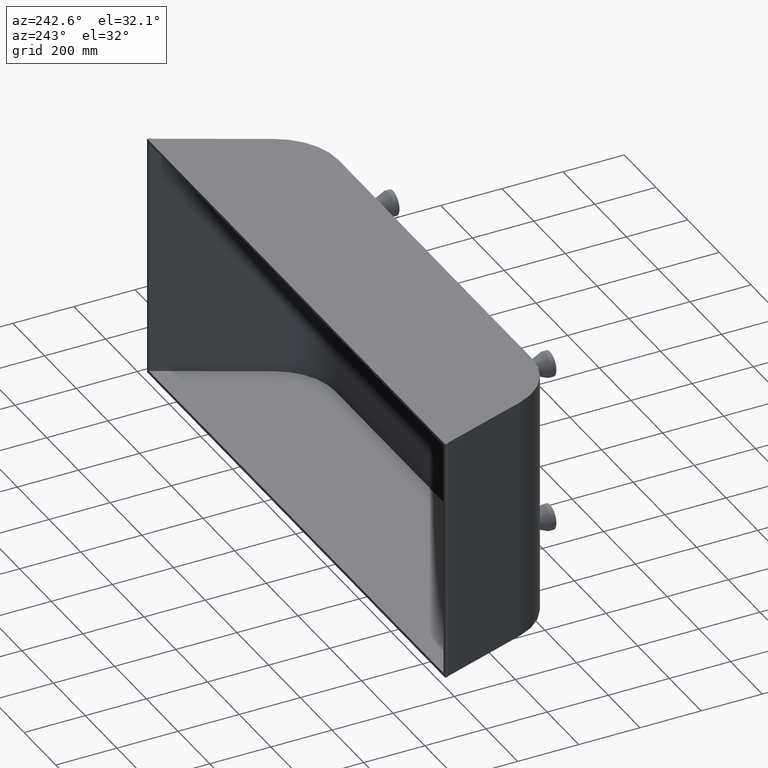
[diagram: clean part render]
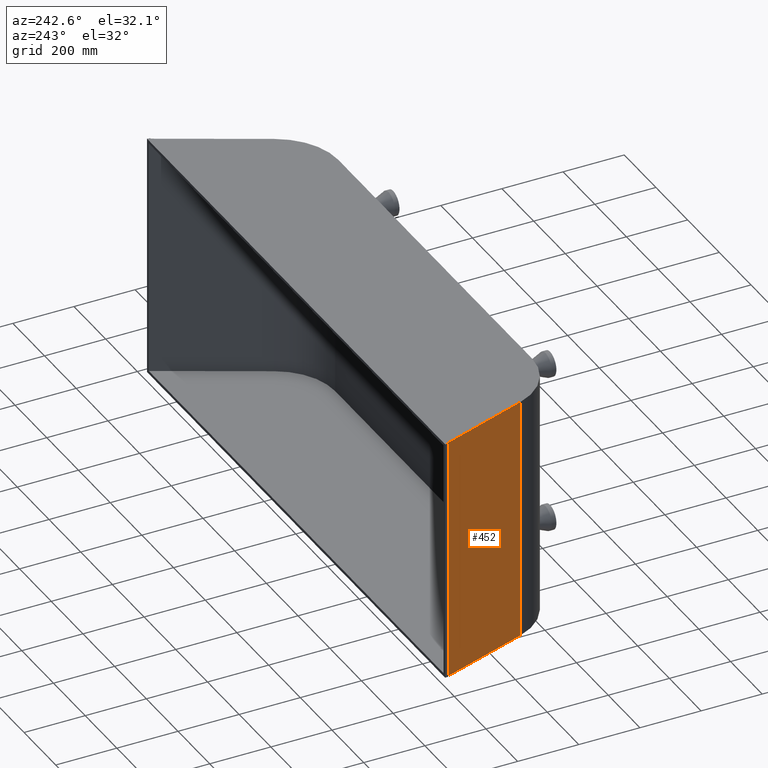
[diagram: same view with one face highlighted and labeled with its STEP entity id]
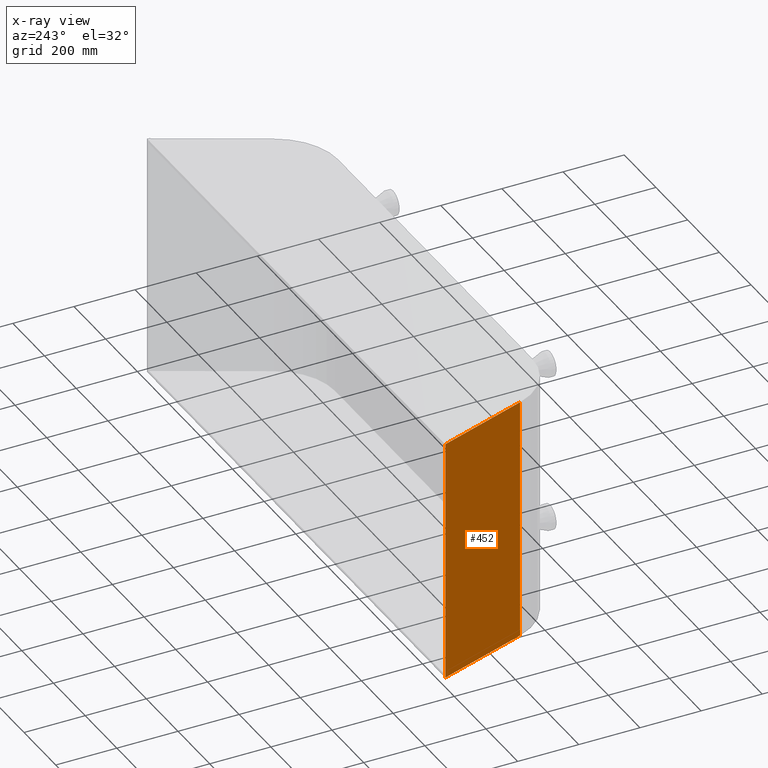
[diagram: x-ray of the same camera — body ghosted, the highlighted face saturated]
A machine part, auxiliary view. The second image highlights one B-rep face of the part: STEP entity #452.
The next image is the same camera in x-ray: the body ghosted, the highlighted face saturated — about 0% of this face is hidden behind the body in this view.
In plain terms, the highlighted planar face has unit normal (0.9442, 0.3294, -0).
Its self-contained STEP definition (entity closure, byte-faithful):
#74 = EDGE_CURVE ( 'NONE', #2012, #993, #445, .T. ) ;
#105 = CARTESIAN_POINT ( 'NONE',  ( -840.3330336370225950, -293.1394303384968225, 390.0000000000000000 ) ) ;
#125 = CARTESIAN_POINT ( 'NONE',  ( -840.3330336370225950, -293.1394303384968225, -400.0000000000000000 ) ) ;
#138 = ORIENTED_EDGE ( 'NONE', *, *, #1417, .T. ) ;
#139 = AXIS2_PLACEMENT_3D ( 'NONE', #105, #2107, #756 ) ;
#168 = VERTEX_POINT ( 'NONE', #498 ) ;
#233 = ORIENTED_EDGE ( 'NONE', *, *, #1397, .F. ) ;
#270 = EDGE_LOOP ( 'NONE', ( #981, #1997, #233, #138 ) ) ;
#274 = LINE ( 'NONE', #961, #928 ) ;
#307 = CARTESIAN_POINT ( 'NONE',  ( -838.2299909085302261, -299.1681528268418901, 400.0000000000000000 ) ) ;
#316 = DIRECTION ( 'NONE',  ( -0.0000000000000000000, -0.0000000000000000000, -1.000000000000000000 ) ) ;
#362 = VECTOR ( 'NONE', #1962, 1000.000000000000114 ) ;
#445 = LINE ( 'NONE', #1085, #1850 ) ;
#452 = ADVANCED_FACE ( 'NONE', ( #1929 ), #950, .F. ) ;
#489 = VERTEX_POINT ( 'NONE', #707 ) ;
#498 = CARTESIAN_POINT ( 'NONE',  ( -942.5909744527774592, -2.463240053094104319E-15, -400.0000000000000000 ) ) ;
#592 = VECTOR ( 'NONE', #806, 1000.000000000000114 ) ;
#619 = LINE ( 'NONE', #1287, #362 ) ;
#707 = CARTESIAN_POINT ( 'NONE',  ( -942.5909744527774592, -2.463240053094104319E-15, 400.0000000000000000 ) ) ;
#756 = DIRECTION ( 'NONE',  ( -0.3293721563182946399, 0.9442001814457762210, 0.0000000000000000000 ) ) ;
#806 = DIRECTION ( 'NONE',  ( 0.3293721563182946399, -0.9442001814457762210, 0.0000000000000000000 ) ) ;
#928 = VECTOR ( 'NONE', #1626, 1000.000000000000000 ) ;
#950 = PLANE ( 'NONE',  #139 ) ;
#961 = CARTESIAN_POINT ( 'NONE',  ( -942.5909744527774592, -2.463240053094104319E-15, 390.0000000000000000 ) ) ;
#981 = ORIENTED_EDGE ( 'NONE', *, *, #1562, .T. ) ;
#993 = VERTEX_POINT ( 'NONE', #1511 ) ;
#1085 = CARTESIAN_POINT ( 'NONE',  ( -838.2299909085302261, -299.1681528268418901, 390.0000000000000000 ) ) ;
#1287 = CARTESIAN_POINT ( 'NONE',  ( -840.3330336370225950, -293.1394303384968225, 400.0000000000000000 ) ) ;
#1397 = EDGE_CURVE ( 'NONE', #489, #2012, #619, .T. ) ;
#1417 = EDGE_CURVE ( 'NONE', #489, #168, #274, .T. ) ;
#1511 = CARTESIAN_POINT ( 'NONE',  ( -838.2299909085302261, -299.1681528268418901, -400.0000000000000000 ) ) ;
#1562 = EDGE_CURVE ( 'NONE', #168, #993, #1639, .T. ) ;
#1626 = DIRECTION ( 'NONE',  ( 0.0000000000000000000, 0.0000000000000000000, -1.000000000000000000 ) ) ;
#1639 = LINE ( 'NONE', #125, #592 ) ;
#1850 = VECTOR ( 'NONE', #316, 1000.000000000000000 ) ;
#1929 = FACE_OUTER_BOUND ( 'NONE', #270, .T. ) ;
#1962 = DIRECTION ( 'NONE',  ( 0.3293721563182946399, -0.9442001814457762210, 0.0000000000000000000 ) ) ;
#1997 = ORIENTED_EDGE ( 'NONE', *, *, #74, .F. ) ;
#2012 = VERTEX_POINT ( 'NONE', #307 ) ;
#2107 = DIRECTION ( 'NONE',  ( 0.9442001814457763320, 0.3293721563182946954, -0.0000000000000000000 ) ) ;